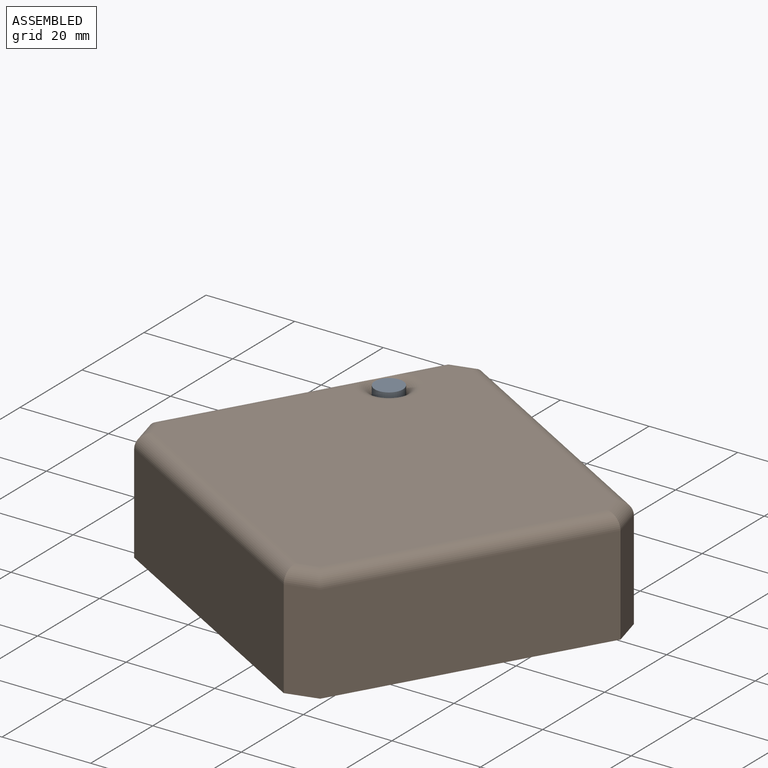
[diagram: assembled view]
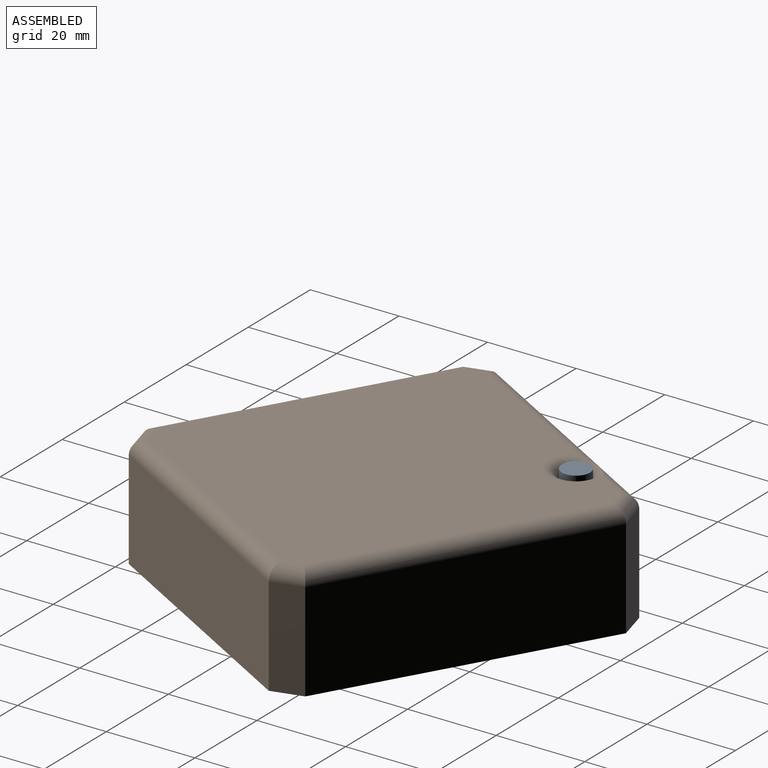
[diagram: assembled view, second angle]
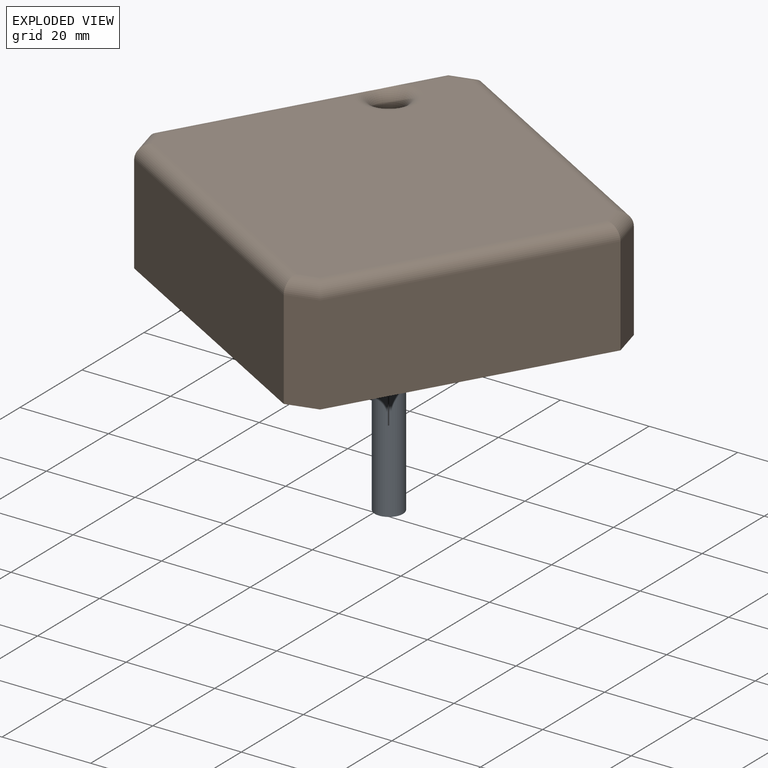
[diagram: exploded view]
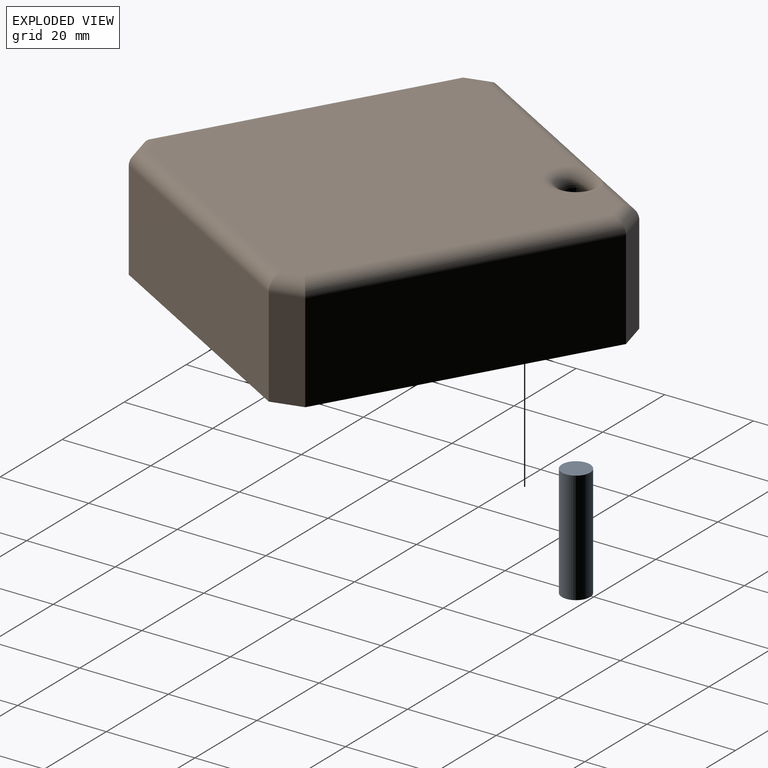
[diagram: exploded view, second angle]
ASSEMBLY  parts=2 mates=2
PART A: 3 faces, bbox 6.4x6.4x25.4 mm
  f0: cylinder r=3.17mm len=25.4mm, axis (0,0,-1), area 506.7mm2, adj f1,f2
  f1: plane 6.35x6.35mm, normal (0,0,1), area 31.7mm2, adj f0
  f2: plane 6.35x6.35mm, normal (0,0,-1), area 31.7mm2, adj f0
PART B: 20 faces, bbox 96.1x94.6x25.4 mm
  f0: plane 53.06x30.63mm, normal (0.87,-0.5,0), area 1361.6mm2, adj f5,f9,f10,f13
  f1: plane 56.65x32.71mm, normal (0.5,0.87,0), area 1453.9mm2, adj f5,f8,f9,f12
  f2: plane 53.06x30.63mm, normal (-0.87,0.5,0), area 1361.6mm2, adj f5,f7,f8,f17
  f3: plane 56.65x32.71mm, normal (-0.5,-0.87,0), area 1453.9mm2, adj f5,f7,f10,f18
  f4: plane 89.27x87.75mm, normal (0,0,1), area 4386.4mm2, adj f11,f12,f13,f14,f15,f16,f17,f18
  f5: plane 96.09x94.57mm, normal (0,0,-1), area 5315mm2, adj f0,f1,f2,f3,f6,f7,f8,f9
  f6: cylinder r=3.17mm len=22.23mm, axis (0,0,1), area 443.4mm2, adj f5,f15
  f7: plane 22.23x6.94mm, normal (-0.97,-0.26,0), area 159.7mm2, adj f2,f3,f5,f19
  f8: plane 22.23x6.94mm, normal (-0.26,0.97,0), area 159.7mm2, adj f1,f2,f5,f14
  f9: plane 22.23x6.94mm, normal (0.97,0.26,0), area 159.7mm2, adj f0,f1,f5,f11
  f10: plane 22.23x6.94mm, normal (0.26,-0.97,0), area 159.7mm2, adj f0,f3,f5,f16
  f11: cylinder r=3.17mm len=7.76mm, axis (-0.26,0.97,0), area 31.1mm2, adj f4,f9,f12,f13
  f12: cylinder r=3.17mm len=58.24mm, axis (0.87,-0.5,0), area 321.5mm2, adj f1,f4,f11,f14
  f13: cylinder r=3.17mm len=54.65mm, axis (-0.5,-0.87,0), area 300.8mm2, adj f0,f4,f11,f16
  f14: cylinder r=3.17mm len=7.76mm, axis (0.97,0.26,0), area 31.1mm2, adj f4,f8,f12,f17
  f15: torus R=6.35mm, axis (0,0,1), area 119.8mm2, adj f4,f6,f17
  f16: cylinder r=3.17mm len=7.76mm, axis (-0.97,-0.26,0), area 31.1mm2, adj f4,f10,f13,f18
  f17: cylinder r=3.17mm len=54.65mm, axis (0.5,0.87,0), area 286.9mm2, adj f2,f4,f14,f15,f19
  f18: cylinder r=3.17mm len=58.24mm, axis (-0.87,0.5,0), area 321.5mm2, adj f3,f4,f16,f19
  f19: cylinder r=3.17mm len=7.76mm, axis (0.26,-0.97,0), area 31.1mm2, adj f4,f7,f17,f18
PLACE A t=(-55.9,18.87,2.63)mm
PLACE B t=(-23.49,-34.41,2.63)mm
MATE cylindrical A.f0 <-> B.f6  axis (0,0,-1) through (-55.9,18.87,15.33)mm
MATE planar A.f0 <-> B.f4  axis (0,0,1) through (-55.9,18.87,28.03)mm
